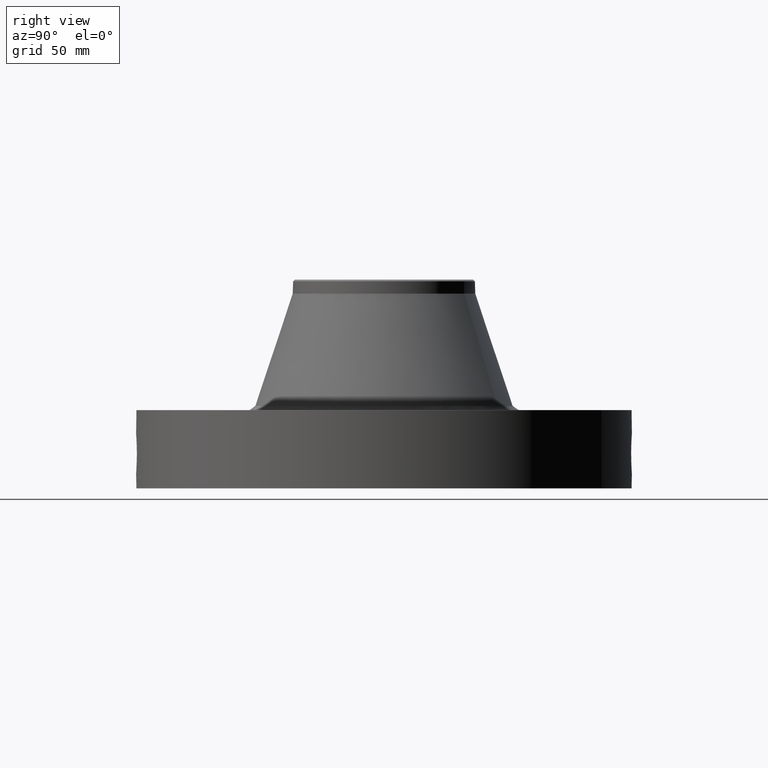
[diagram: clean part render]
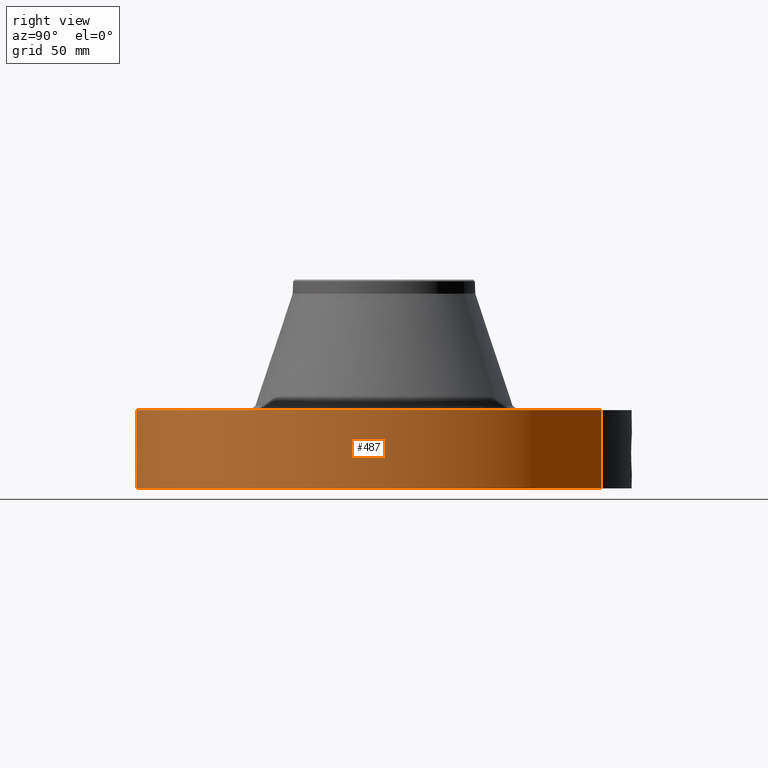
[diagram: same view with one face highlighted and labeled with its STEP entity id]
A machine part, right view. The second image highlights one B-rep face of the part: STEP entity #487.
In plain terms, the highlighted cylindrical surface (partial cylindrical patch) has radius 120.65 mm, axis along (0, 0, -1).
Its self-contained STEP definition (entity closure, byte-faithful):
#38=AXIS2_PLACEMENT_3D('Cylinder Axis2P3D',#35,#36,#37) ;
#185=AXIS2_PLACEMENT_3D('Circle Axis2P3D',#183,#184,$) ;
#375=AXIS2_PLACEMENT_3D('Circle Axis2P3D',#373,#374,$) ;
#35=CARTESIAN_POINT('Axis2P3D Location',(0.,0.,2.25000000001)) ;
#44=CARTESIAN_POINT('Vertex',(-2.27727130838,-4.168517169,0.250000000001)) ;
#46=CARTESIAN_POINT('Vertex',(2.27727130838,4.168517169,0.250000000001)) ;
#49=CARTESIAN_POINT('Line Origine',(-2.27727130838,-4.168517169,1.)) ;
#53=CARTESIAN_POINT('Vertex',(-2.27727130838,-4.168517169,1.75000000001)) ;
#60=CARTESIAN_POINT('Vertex',(2.27727130838,4.168517169,1.75000000001)) ;
#63=CARTESIAN_POINT('Line Origine',(2.27727130838,4.168517169,1.)) ;
#183=CARTESIAN_POINT('Axis2P3D Location',(0.,0.,0.250000000001)) ;
#373=CARTESIAN_POINT('Axis2P3D Location',(0.,0.,1.75000000001)) ;
#385=CARTESIAN_POINT('Control Point',(0.0664443336466,-4.74953525629,1.28781472967)) ;
#386=CARTESIAN_POINT('Control Point',(0.0447973834523,-4.74983808953,1.29195972283)) ;
#387=CARTESIAN_POINT('Control Point',(0.0227596203673,-4.74999661825,1.29407372225)) ;
#388=CARTESIAN_POINT('Control Point',(0.0007170809839,-4.74999994589,1.29411849685)) ;
#389=CARTESIAN_POINT('Vertex',(0.0664188696294,-4.74953588304,1.28781991618)) ;
#391=CARTESIAN_POINT('Vertex',(0.000716859021628,-4.74999994592,1.29411850704)) ;
#395=CARTESIAN_POINT('Control Point',(0.0664187407928,-4.74953561425,1.28781927448)) ;
#396=CARTESIAN_POINT('Control Point',(0.102753721,-4.74902749644,1.28201870457)) ;
#397=CARTESIAN_POINT('Control Point',(0.138115211602,-4.74810201592,1.26977317773)) ;
#398=CARTESIAN_POINT('Control Point',(0.170475904125,-4.74693985282,1.25208714514)) ;
#399=CARTESIAN_POINT('Vertex',(0.170475904125,-4.74693985282,1.25208714514)) ;
#403=CARTESIAN_POINT('Control Point',(0.0289717654606,-4.74991164518,0.53104117424)) ;
#404=CARTESIAN_POINT('Control Point',(0.0747966531703,-4.74963213937,0.536930034357)) ;
#405=CARTESIAN_POINT('Control Point',(0.119477769955,-4.74880696846,0.550185753395)) ;
#406=CARTESIAN_POINT('Control Point',(0.161312069032,-4.74750063068,0.57044024244)) ;
#407=CARTESIAN_POINT('Control Point',(0.245546224645,-4.74402236714,0.62855907637)) ;
#408=CARTESIAN_POINT('Control Point',(0.306057140398,-4.74027319235,0.709607764513)) ;
#409=CARTESIAN_POINT('Control Point',(0.330993871984,-4.73849840088,0.759101526965)) ;
#410=CARTESIAN_POINT('Control Point',(0.358450567619,-4.73646747946,0.847415945872)) ;
#411=CARTESIAN_POINT('Control Point',(0.360779964704,-4.73627580375,0.938205105283)) ;
#412=CARTESIAN_POINT('Control Point',(0.357515798069,-4.73652939594,0.975158290227)) ;
#413=CARTESIAN_POINT('Control Point',(0.339028118432,-4.73793770505,1.06509307521)) ;
#414=CARTESIAN_POINT('Control Point',(0.295443998827,-4.74092283743,1.14643073318)) ;
#415=CARTESIAN_POINT('Control Point',(0.260804026735,-4.74309248769,1.1900096314)) ;
#416=CARTESIAN_POINT('Control Point',(0.218315242595,-4.7452218082,1.225941594)) ;
#417=CARTESIAN_POINT('Control Point',(0.170475904125,-4.74693985282,1.25208714514)) ;
#418=CARTESIAN_POINT('Vertex',(0.0289717654606,-4.74991164518,0.53104117424)) ;
#422=CARTESIAN_POINT('Control Point',(0.0289717654606,-4.74991164518,0.53104117424)) ;
#423=CARTESIAN_POINT('Control Point',(0.0193073849474,-4.74997059241,0.530854119281)) ;
#424=CARTESIAN_POINT('Control Point',(0.00964169540522,-4.75000000556,0.530965378902)) ;
#425=CARTESIAN_POINT('Control Point',(-2.72878353191E-006,-4.75000000002,0.531374667805)) ;
#426=CARTESIAN_POINT('Vertex',(-2.72878353841E-006,-4.75000000002,0.531374667805)) ;
#430=CARTESIAN_POINT('Control Point',(-0.194608877525,-4.7460117346,0.583778592451)) ;
#431=CARTESIAN_POINT('Control Point',(-0.134839366287,-4.74846256661,0.552003246567)) ;
#432=CARTESIAN_POINT('Control Point',(-0.0678388662211,-4.74999996105,0.534253489827)) ;
#433=CARTESIAN_POINT('Control Point',(-2.72878353616E-006,-4.75000000002,0.531374667805)) ;
#434=CARTESIAN_POINT('Vertex',(-0.194608877525,-4.7460117346,0.583778592451)) ;
#438=CARTESIAN_POINT('Control Point',(-0.332827639993,-4.73832520647,0.701219893118)) ;
#439=CARTESIAN_POINT('Control Point',(-0.305364932818,-4.74025423152,0.66455856728)) ;
#440=CARTESIAN_POINT('Control Point',(-0.272251915482,-4.74236913954,0.63221848109)) ;
#441=CARTESIAN_POINT('Control Point',(-0.234901661664,-4.74435954031,0.605199499462)) ;
#442=CARTESIAN_POINT('Control Point',(-0.194608877525,-4.7460117346,0.583778592451)) ;
#443=CARTESIAN_POINT('Vertex',(-0.332827639993,-4.73832520647,0.701219893118)) ;
#447=CARTESIAN_POINT('Control Point',(-0.332827639993,-4.73832520647,0.701219893118)) ;
#448=CARTESIAN_POINT('Control Point',(-0.362191423101,-4.73626264676,0.744057421674)) ;
#449=CARTESIAN_POINT('Control Point',(-0.384606624187,-4.73444241076,0.791551724289)) ;
#450=CARTESIAN_POINT('Control Point',(-0.399485379706,-4.73317703047,0.84180424816)) ;
#451=CARTESIAN_POINT('Control Point',(-0.406764031121,-4.73255142848,0.893249885444)) ;
#452=CARTESIAN_POINT('Vertex',(-0.406764031121,-4.73255142848,0.893249885444)) ;
#456=CARTESIAN_POINT('Control Point',(-0.406764031121,-4.73255142848,0.893249885444)) ;
#457=CARTESIAN_POINT('Control Point',(-0.410937043432,-4.73219275698,0.943590828623)) ;
#458=CARTESIAN_POINT('Control Point',(-0.406199449954,-4.73259532086,0.994560330849)) ;
#459=CARTESIAN_POINT('Control Point',(-0.392245340201,-4.73383204363,1.04389645051)) ;
#460=CARTESIAN_POINT('Control Point',(-0.356408433108,-4.73676757046,1.11810453387)) ;
#461=CARTESIAN_POINT('Control Point',(-0.30335547227,-4.74037517985,1.17883123609)) ;
#462=CARTESIAN_POINT('Control Point',(-0.280572013156,-4.74179821439,1.2000545704)) ;
#463=CARTESIAN_POINT('Control Point',(-0.216669478454,-4.74536023062,1.24871840008)) ;
#464=CARTESIAN_POINT('Control Point',(-0.143130760673,-4.7481822494,1.27972813256)) ;
#465=CARTESIAN_POINT('Control Point',(-0.0957567995329,-4.74940386749,1.29169900668)) ;
#466=CARTESIAN_POINT('Control Point',(-0.0475901556899,-4.75000025916,1.29648726642)) ;
#467=CARTESIAN_POINT('Control Point',(2.58579355193E-005,-4.74999999995,1.29415298437)) ;
#468=CARTESIAN_POINT('Vertex',(2.58579355155E-005,-4.74999999995,1.29415298437)) ;
#472=CARTESIAN_POINT('Control Point',(0.000716859009904,-4.74999994592,1.29411850702)) ;
#473=CARTESIAN_POINT('Control Point',(0.000371381626739,-4.74999999807,1.29413604576)) ;
#474=CARTESIAN_POINT('Control Point',(2.58579432306E-005,-4.74999999995,1.29415298437)) ;
#36=DIRECTION('Axis2P3D Direction',(0.,0.,-0.0393700787402)) ;
#37=DIRECTION('Axis2P3D XDirection',(0.0188750212049,0.0345504945626,0.)) ;
#50=DIRECTION('Vector Direction',(0.,0.,-0.0393700787402)) ;
#64=DIRECTION('Vector Direction',(0.,0.,-0.0393700787402)) ;
#184=DIRECTION('Axis2P3D Direction',(0.,0.,-0.0393700787402)) ;
#374=DIRECTION('Axis2P3D Direction',(0.,0.,-0.0393700787402)) ;
#51=VECTOR('Line Direction',#50,0.0393700787402) ;
#65=VECTOR('Line Direction',#64,0.0393700787402) ;
#379=ORIENTED_EDGE('',*,*,#187,.F.) ;
#380=ORIENTED_EDGE('',*,*,#67,.T.) ;
#381=ORIENTED_EDGE('',*,*,#377,.T.) ;
#382=ORIENTED_EDGE('',*,*,#55,.F.) ;
#477=ORIENTED_EDGE('',*,*,#393,.F.) ;
#478=ORIENTED_EDGE('',*,*,#401,.T.) ;
#479=ORIENTED_EDGE('',*,*,#420,.F.) ;
#480=ORIENTED_EDGE('',*,*,#428,.T.) ;
#481=ORIENTED_EDGE('',*,*,#436,.F.) ;
#482=ORIENTED_EDGE('',*,*,#445,.F.) ;
#483=ORIENTED_EDGE('',*,*,#454,.T.) ;
#484=ORIENTED_EDGE('',*,*,#470,.T.) ;
#485=ORIENTED_EDGE('',*,*,#475,.F.) ;
#486=FACE_BOUND('',#476,.T.) ;
#487=ADVANCED_FACE('PartBody',(#383,#486),#39,.T.) ;
#384=B_SPLINE_CURVE_WITH_KNOTS('',3,(#385,#386,#387,#388),.UNSPECIFIED.,.F.,.U.,(4,4),(4.07664136125,6.52206473219),.UNSPECIFIED.) ;
#394=B_SPLINE_CURVE_WITH_KNOTS('',3,(#395,#396,#397,#398),.UNSPECIFIED.,.F.,.U.,(4,4),(0.,4.13427651558),.UNSPECIFIED.) ;
#402=B_SPLINE_CURVE_WITH_KNOTS('',5,(#403,#404,#405,#406,#407,#408,#409,#410,#411,#412,#413,#414,#415,#416,#417),.UNSPECIFIED.,.F.,.U.,(6,3,3,3,6),(0.,8.03013531032,17.9302111504,24.7841526725,34.970433234),.UNSPECIFIED.) ;
#421=B_SPLINE_CURVE_WITH_KNOTS('',3,(#422,#423,#424,#425),.UNSPECIFIED.,.F.,.U.,(4,4),(0.,1.00795509622),.UNSPECIFIED.) ;
#429=B_SPLINE_CURVE_WITH_KNOTS('',3,(#430,#431,#432,#433),.UNSPECIFIED.,.F.,.U.,(4,4),(0.,7.08966954538),.UNSPECIFIED.) ;
#437=B_SPLINE_CURVE_WITH_KNOTS('',4,(#438,#439,#440,#441,#442),.UNSPECIFIED.,.F.,.U.,(5,5),(0.,6.37253605641),.UNSPECIFIED.) ;
#446=B_SPLINE_CURVE_WITH_KNOTS('',4,(#447,#448,#449,#450,#451),.UNSPECIFIED.,.F.,.U.,(5,5),(0.,7.22451487815),.UNSPECIFIED.) ;
#455=B_SPLINE_CURVE_WITH_KNOTS('',5,(#456,#457,#458,#459,#460,#461,#462,#463,#464,#465,#466,#467),.UNSPECIFIED.,.F.,.U.,(6,3,3,6),(0.,8.77965380679,14.3423432735,23.2427618104),.UNSPECIFIED.) ;
#471=B_SPLINE_CURVE_WITH_KNOTS('',2,(#472,#473,#474),.UNSPECIFIED.,.F.,.U.,(3,3),(1.10272046804,1.12855468109),.UNSPECIFIED.) ;
#186=CIRCLE('generated circle',#185,4.75000000002) ;
#376=CIRCLE('generated circle',#375,4.75000000002) ;
#39=CYLINDRICAL_SURFACE('generated cylinder',#38,4.75000000002) ;
#55=EDGE_CURVE('',#45,#54,#52,.F.) ;
#67=EDGE_CURVE('',#47,#61,#66,.F.) ;
#187=EDGE_CURVE('',#47,#45,#186,.T.) ;
#377=EDGE_CURVE('',#61,#54,#376,.T.) ;
#393=EDGE_CURVE('',#390,#392,#384,.T.) ;
#401=EDGE_CURVE('',#390,#400,#394,.T.) ;
#420=EDGE_CURVE('',#419,#400,#402,.T.) ;
#428=EDGE_CURVE('',#419,#427,#421,.T.) ;
#436=EDGE_CURVE('',#435,#427,#429,.T.) ;
#445=EDGE_CURVE('',#444,#435,#437,.T.) ;
#454=EDGE_CURVE('',#444,#453,#446,.T.) ;
#470=EDGE_CURVE('',#453,#469,#455,.T.) ;
#475=EDGE_CURVE('',#392,#469,#471,.T.) ;
#378=EDGE_LOOP('',(#379,#380,#381,#382)) ;
#476=EDGE_LOOP('',(#477,#478,#479,#480,#481,#482,#483,#484,#485)) ;
#383=FACE_OUTER_BOUND('',#378,.T.) ;
#52=LINE('Line',#49,#51) ;
#66=LINE('Line',#63,#65) ;
#45=VERTEX_POINT('',#44) ;
#47=VERTEX_POINT('',#46) ;
#54=VERTEX_POINT('',#53) ;
#61=VERTEX_POINT('',#60) ;
#390=VERTEX_POINT('',#389) ;
#392=VERTEX_POINT('',#391) ;
#400=VERTEX_POINT('',#399) ;
#419=VERTEX_POINT('',#418) ;
#427=VERTEX_POINT('',#426) ;
#435=VERTEX_POINT('',#434) ;
#444=VERTEX_POINT('',#443) ;
#453=VERTEX_POINT('',#452) ;
#469=VERTEX_POINT('',#468) ;